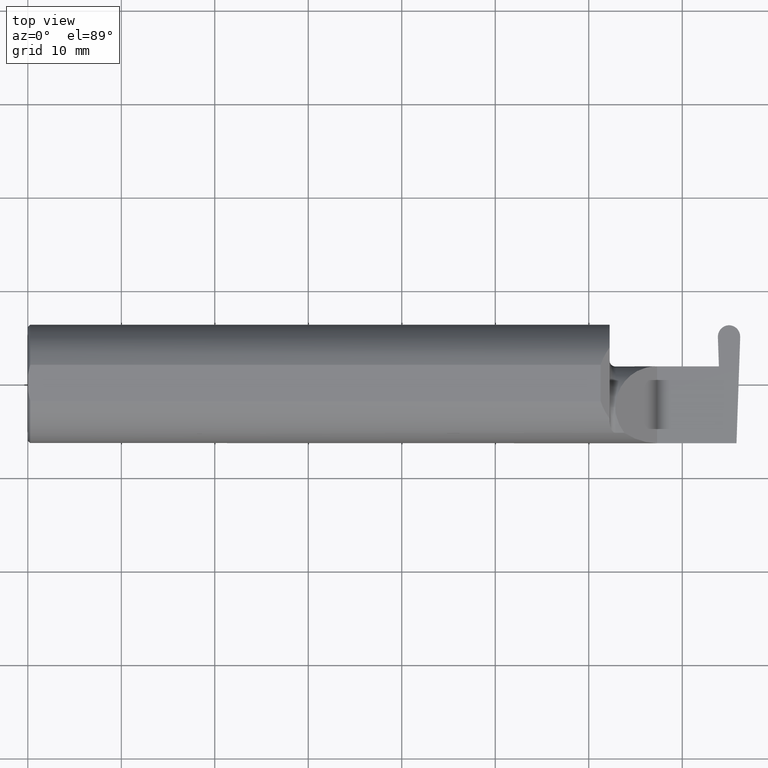
[diagram: clean part render]
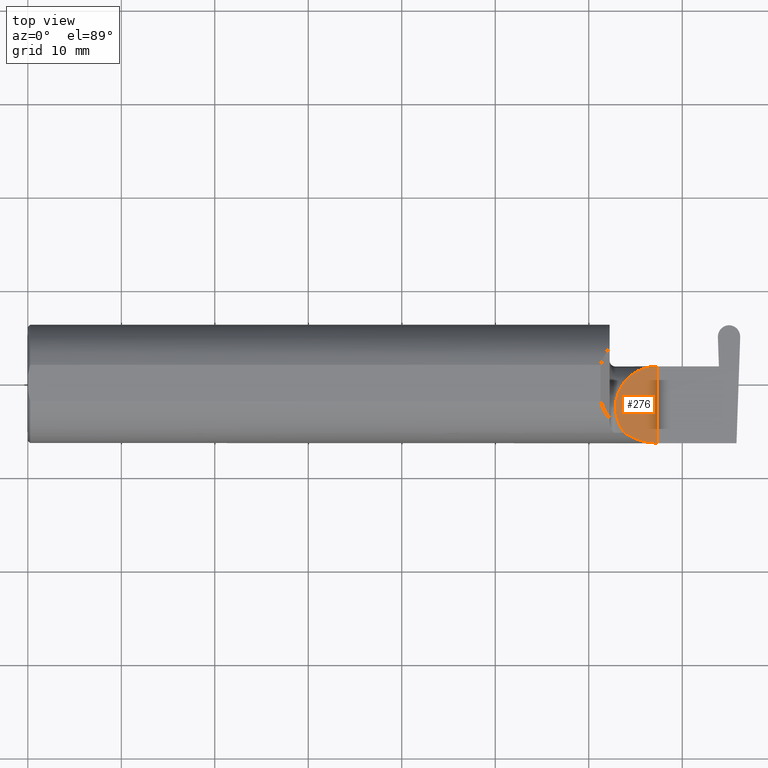
[diagram: same view with one face highlighted and labeled with its STEP entity id]
A machine part, top view. The second image highlights one B-rep face of the part: STEP entity #276.
In plain terms, the highlighted planar face has unit normal (-0.7071, 0, -0.7071).
Its self-contained STEP definition (entity closure, byte-faithful):
#11 = LINE ( 'NONE', #18, #816 ) ;
#18 = CARTESIAN_POINT ( 'NONE',  ( 2.650000000000000355, -0.2500000000000000555, 4.286263797015729199E-17 ) ) ;
#49 =( BOUNDED_CURVE ( )  B_SPLINE_CURVE ( 3, ( #488, #345, #797, #223 ),
 .UNSPECIFIED., .F., .T. ) 
 B_SPLINE_CURVE_WITH_KNOTS ( ( 4, 4 ),
 ( 4.712388980384689674, 5.298966915116348986 ),
 .UNSPECIFIED. ) 
 CURVE ( )  GEOMETRIC_REPRESENTATION_ITEM ( )  RATIONAL_B_SPLINE_CURVE ( ( 1.000000000000000000, 0.9715321379117536349, 0.9715321379117536349, 1.000000000000000000 ) ) 
 REPRESENTATION_ITEM ( '' )  );
#95 = CARTESIAN_POINT ( 'NONE',  ( 2.487690731615565642, -0.1771157075472507003, 0.1623092683844333250 ) ) ;
#145 = FACE_OUTER_BOUND ( 'NONE', #512, .T. ) ;
#148 = ORIENTED_EDGE ( 'NONE', *, *, #655, .F. ) ;
#207 = VERTEX_POINT ( 'NONE', #651 ) ;
#223 = CARTESIAN_POINT ( 'NONE',  ( 2.511704467739031887, -0.2080850024789287211, 0.1382955322609671911 ) ) ;
#225 = DIRECTION ( 'NONE',  ( -0.000000000000000000, 1.000000000000000000, -0.000000000000000000 ) ) ;
#227 = CARTESIAN_POINT ( 'NONE',  ( 2.511704467739031887, -0.2080850024789287211, 0.1382955322609671911 ) ) ;
#276 = ADVANCED_FACE ( 'NONE', ( #145 ), #612, .F. ) ;
#284 = EDGE_CURVE ( 'NONE', #207, #472, #11, .T. ) ;
#293 = VERTEX_POINT ( 'NONE', #350 ) ;
#297 = CARTESIAN_POINT ( 'NONE',  ( 2.650000000000000355, 0.07414999999999984104, 4.286263797015729199E-17 ) ) ;
#327 = EDGE_CURVE ( 'NONE', #388, #293, #405, .T. ) ;
#345 = CARTESIAN_POINT ( 'NONE',  ( 2.600434159100402987, -0.2498499999999999610, 0.04956584089959713973 ) ) ;
#350 = CARTESIAN_POINT ( 'NONE',  ( 2.475000000000000089, -0.1008500000000001340, 0.1749999999999984346 ) ) ;
#363 = CARTESIAN_POINT ( 'NONE',  ( 2.475000000000000089, -0.1008500000000001340, 0.1749999999999984346 ) ) ;
#366 = CARTESIAN_POINT ( 'NONE',  ( 2.475000000000000089, -0.1008500000000001340, 0.1749999999999984346 ) ) ;
#388 = VERTEX_POINT ( 'NONE', #227 ) ;
#405 =( BOUNDED_CURVE ( )  B_SPLINE_CURVE ( 3, ( #679, #95, #745, #363 ),
 .UNSPECIFIED., .F., .F. ) 
 B_SPLINE_CURVE_WITH_KNOTS ( ( 4, 4 ),
 ( 5.623622464215683792, 6.283185307179586232 ),
 .UNSPECIFIED. ) 
 CURVE ( )  GEOMETRIC_REPRESENTATION_ITEM ( )  RATIONAL_B_SPLINE_CURVE ( ( 1.000000000000000000, 0.9640754331822833922, 0.9640754331822833922, 1.000000000000000000 ) ) 
 REPRESENTATION_ITEM ( '' )  );
#413 = DIRECTION ( 'NONE',  ( -0.7071067811865511255, 0.000000000000000000, 0.7071067811865439090 ) ) ;
#414 = ORIENTED_EDGE ( 'NONE', *, *, #327, .F. ) ;
#445 = CARTESIAN_POINT ( 'NONE',  ( 2.650000000000000355, 0.07414999999999984104, 4.286263797015729199E-17 ) ) ;
#458 = ORIENTED_EDGE ( 'NONE', *, *, #284, .T. ) ;
#472 = VERTEX_POINT ( 'NONE', #297 ) ;
#488 = CARTESIAN_POINT ( 'NONE',  ( 2.650000000000000355, -0.2498499999999999610, 4.286263797015729199E-17 ) ) ;
#503 = CARTESIAN_POINT ( 'NONE',  ( 2.547487373415291412, 0.07414999999999996594, 0.1025126265847084578 ) ) ;
#512 = EDGE_LOOP ( 'NONE', ( #756, #414, #148, #458 ) ) ;
#547 = CARTESIAN_POINT ( 'NONE',  ( 2.650000000000000355, -0.2500000000000000555, 4.286263797015729199E-17 ) ) ;
#612 = PLANE ( 'NONE',  #843 ) ;
#651 = CARTESIAN_POINT ( 'NONE',  ( 2.650000000000000355, -0.2498499999999999610, 4.286263797015729199E-17 ) ) ;
#655 = EDGE_CURVE ( 'NONE', #207, #388, #49, .T. ) ;
#679 = CARTESIAN_POINT ( 'NONE',  ( 2.511704467739031887, -0.2080850024789287211, 0.1382955322609671911 ) ) ;
#689 = CARTESIAN_POINT ( 'NONE',  ( 2.474999999999998757, 0.001662626584708303207, 0.1750000000000001277 ) ) ;
#745 = CARTESIAN_POINT ( 'NONE',  ( 2.474999999999998757, -0.1400387324517230747, 0.1750000000000001277 ) ) ;
#756 = ORIENTED_EDGE ( 'NONE', *, *, #825, .F. ) ;
#762 =( BOUNDED_CURVE ( )  B_SPLINE_CURVE ( 3, ( #366, #689, #503, #445 ),
 .UNSPECIFIED., .F., .T. ) 
 B_SPLINE_CURVE_WITH_KNOTS ( ( 4, 4 ),
 ( 0.000000000000000000, 1.570796326794896558 ),
 .UNSPECIFIED. ) 
 CURVE ( )  GEOMETRIC_REPRESENTATION_ITEM ( )  RATIONAL_B_SPLINE_CURVE ( ( 1.000000000000000000, 0.8047378541243649375, 0.8047378541243649375, 1.000000000000000000 ) ) 
 REPRESENTATION_ITEM ( '' )  );
#797 = CARTESIAN_POINT ( 'NONE',  ( 2.552984868485331571, -0.2355204011147991605, 0.09701513151466779894 ) ) ;
#801 = DIRECTION ( 'NONE',  ( -0.7071067811865439090, 0.000000000000000000, -0.7071067811865511255 ) ) ;
#816 = VECTOR ( 'NONE', #225, 39.37007874015748143 ) ;
#825 = EDGE_CURVE ( 'NONE', #293, #472, #762, .T. ) ;
#843 = AXIS2_PLACEMENT_3D ( 'NONE', #547, #801, #413 ) ;